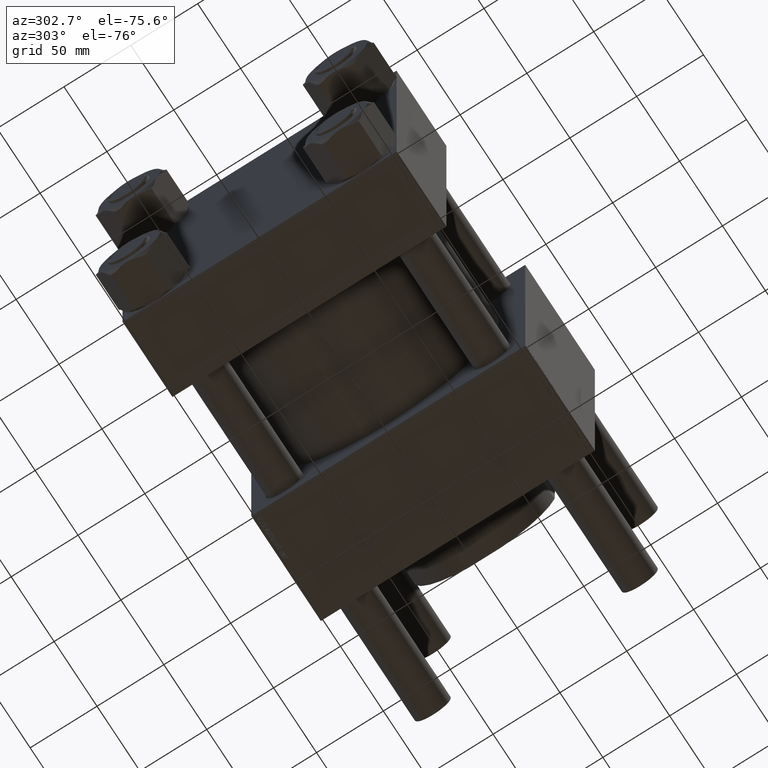
[diagram: clean part render]
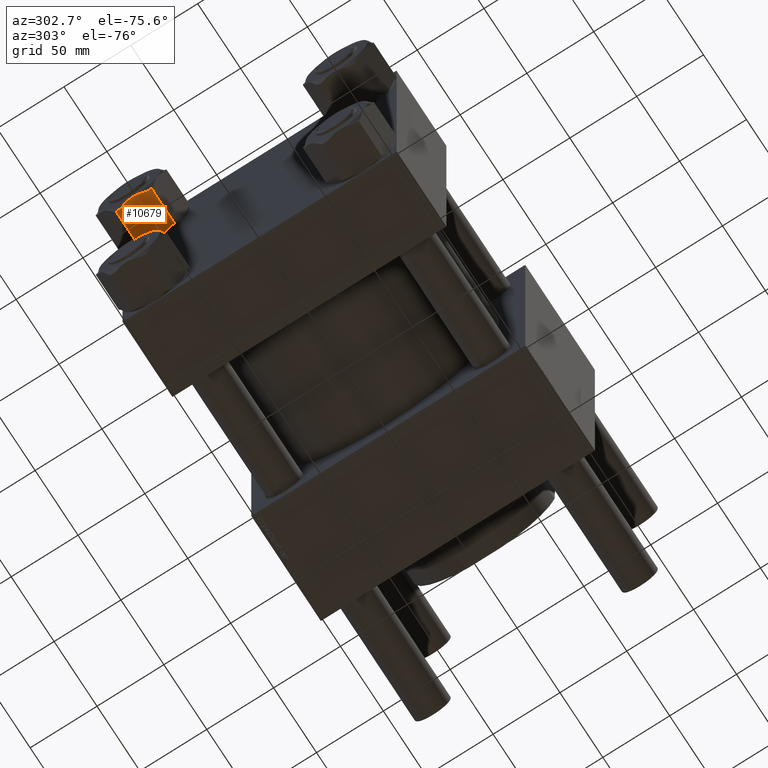
[diagram: same view with one face highlighted and labeled with its STEP entity id]
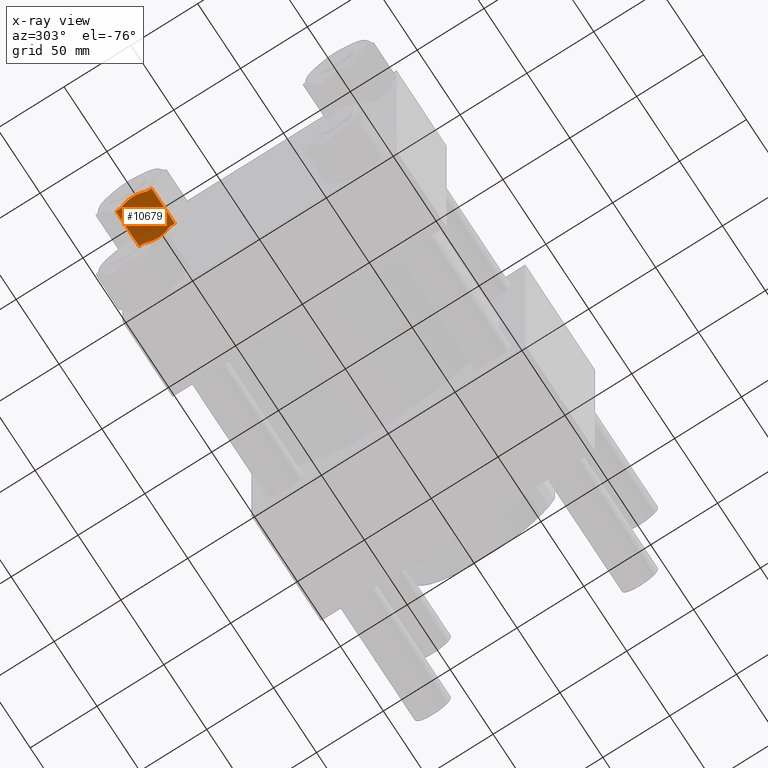
[diagram: x-ray of the same camera — body ghosted, the highlighted face saturated]
A machine part, auxiliary view. The second image highlights one B-rep face of the part: STEP entity #10679.
The next image is the same camera in x-ray: the body ghosted, the highlighted face saturated — about 12% of this face is hidden behind the body in this view.
In plain terms, the highlighted planar face has unit normal (0, 0.0859, 0.9963).
Its self-contained STEP definition (entity closure, byte-faithful):
#48 = EDGE_CURVE ( 'NONE', #52594, #17227, #28685, .T. ) ;
#327 = CARTESIAN_POINT ( 'NONE',  ( 0.000000000000000000, 23.05359624874177271, -31.00000000000000000 ) ) ;
#1963 = FACE_OUTER_BOUND ( 'NONE', #46764, .T. ) ;
#2546 = DIRECTION ( 'NONE',  ( -1.000000000000000000, 0.000000000000000000, 0.000000000000000000 ) ) ;
#2563 = CARTESIAN_POINT ( 'NONE',  ( 9.808893158505055609, 23.05359624874177271, -2.000000000000000000 ) ) ;
#2827 = DIRECTION ( 'NONE',  ( 0.000000000000000000, -0.000000000000000000, -1.000000000000000000 ) ) ;
#3520 = CARTESIAN_POINT ( 'NONE',  ( 6.641506094493674794, 23.05359624874176916, -30.11551404775775254 ) ) ;
#3764 = CARTESIAN_POINT ( 'NONE',  ( 8.222377524857016340, 23.05359624874177271, -1.410427084452076096 ) ) ;
#3979 = CARTESIAN_POINT ( 'NONE',  ( 9.808893158505068044, 23.05359624874177271, -28.99999999999999645 ) ) ;
#4345 = CARTESIAN_POINT ( 'NONE',  ( 9.808893158505055609, 23.05359624874177271, -2.000000000000000000 ) ) ;
#4618 = CARTESIAN_POINT ( 'NONE',  ( 0.000000000000000000, 23.05359624874177271, 0.000000000000000000 ) ) ;
#4896 = CARTESIAN_POINT ( 'NONE',  ( 3.350210548520252907, 23.05359624874177626, -0.1873351914320967315 ) ) ;
#6132 = LINE ( 'NONE', #12443, #45619 ) ;
#6515 = CARTESIAN_POINT ( 'NONE',  ( -0.8470567002417573876, 23.05359624874177271, -0.01168982920650373826 ) ) ;
#6753 = VERTEX_POINT ( 'NONE', #2563 ) ;
#6970 = ORIENTED_EDGE ( 'NONE', *, *, #29173, .F. ) ;
#7279 = EDGE_CURVE ( 'NONE', #20214, #17227, #35715, .T. ) ;
#7380 = CARTESIAN_POINT ( 'NONE',  ( -9.808893158505055609, 23.05359624874177271, -2.000000000000000000 ) ) ;
#7844 = VERTEX_POINT ( 'NONE', #28090 ) ;
#7972 = LINE ( 'NONE', #21301, #51816 ) ;
#9628 = B_SPLINE_CURVE_WITH_KNOTS ( 'NONE', 3,
 ( #56115, #50884, #6515, #37564, #47126, #46278, #25081, #46558, #29438, #7380 ),
 .UNSPECIFIED., .F., .F.,
 ( 4, 2, 2, 2, 4 ),
 ( 0.04709422404877768031, 0.04834823400549315836, 0.04960224396220863641, 0.05211026387563959944, 0.05712630370250151163 ),
 .UNSPECIFIED. ) ;
#9908 = ORIENTED_EDGE ( 'NONE', *, *, #48, .F. ) ;
#10679 = ADVANCED_FACE ( 'NONE', ( #1963 ), #42031, .F. ) ;
#11471 = EDGE_CURVE ( 'NONE', #7844, #17486, #27303, .T. ) ;
#12443 = CARTESIAN_POINT ( 'NONE',  ( -13.30999999999999872, 23.05359624874177271, -2.000000000000001776 ) ) ;
#12543 = CARTESIAN_POINT ( 'NONE',  ( 4.192182187841027918, 23.05359624874176916, -30.63552287451818046 ) ) ;
#13017 = CARTESIAN_POINT ( 'NONE',  ( -1.690332161126405497, 23.05359624874176561, -30.99999999999998934 ) ) ;
#15524 = CARTESIAN_POINT ( 'NONE',  ( -13.30999999999999872, 23.05359624874177271, -28.99999999999999645 ) ) ;
#16784 = CARTESIAN_POINT ( 'NONE',  ( -9.808893158505055609, 23.05359624874177271, -2.000000000000000000 ) ) ;
#16787 = CARTESIAN_POINT ( 'NONE',  ( 0.000000000000000000, 23.05359624874177271, -31.00000000000000000 ) ) ;
#16961 = DIRECTION ( 'NONE',  ( -0.000000000000000000, -0.000000000000000000, 1.000000000000000000 ) ) ;
#17227 = VERTEX_POINT ( 'NONE', #29747 ) ;
#17463 = CARTESIAN_POINT ( 'NONE',  ( 0.4218342054646818662, 23.05359624874177271, -30.99999999999999645 ) ) ;
#17486 = VERTEX_POINT ( 'NONE', #327 ) ;
#17931 = CARTESIAN_POINT ( 'NONE',  ( -5.801497649255016320, 23.05359624874177271, -30.29464328683341989 ) ) ;
#17936 = DIRECTION ( 'NONE',  ( 1.000000000000000000, 0.000000000000000000, 0.000000000000000000 ) ) ;
#19029 = ORIENTED_EDGE ( 'NONE', *, *, #57231, .F. ) ;
#19037 = CARTESIAN_POINT ( 'NONE',  ( 13.31000000000000227, 23.05359624874177271, -28.99999999999999645 ) ) ;
#19583 = LINE ( 'NONE', #15524, #52327 ) ;
#19681 = CARTESIAN_POINT ( 'NONE',  ( -13.30999999999999872, 23.05359624874177271, -31.00000000000000000 ) ) ;
#19968 = DIRECTION ( 'NONE',  ( 0.000000000000000000, -1.000000000000000000, 0.000000000000000000 ) ) ;
#20214 = VERTEX_POINT ( 'NONE', #47530 ) ;
#20863 = ORIENTED_EDGE ( 'NONE', *, *, #37218, .F. ) ;
#21301 = CARTESIAN_POINT ( 'NONE',  ( 13.31000000000000405, 23.05359624874177271, -31.00000000000000000 ) ) ;
#21449 = B_SPLINE_CURVE_WITH_KNOTS ( 'NONE', 3,
 ( #21813, #17463, #51671, #26178, #43316, #38941, #12543, #3520, #47927, #56910 ),
 .UNSPECIFIED., .F., .F.,
 ( 4, 2, 2, 2, 4 ),
 ( 0.04709422404877766644, 0.04834823400549314448, 0.04960224396220862947, 0.05211026387563958556, 0.05712630370250151163 ),
 .UNSPECIFIED. ) ;
#21813 = CARTESIAN_POINT ( 'NONE',  ( 0.000000000000000000, 23.05359624874177271, -31.00000000000000000 ) ) ;
#22186 = VECTOR ( 'NONE', #17936, 1000.000000000000000 ) ;
#23900 = CARTESIAN_POINT ( 'NONE',  ( 0.000000000000000000, 23.05359624874177271, 0.000000000000000000 ) ) ;
#25081 = CARTESIAN_POINT ( 'NONE',  ( -4.192182187841015484, 23.05359624874176916, -0.3644771254818151562 ) ) ;
#25782 = DIRECTION ( 'NONE',  ( -1.000000000000000000, 0.000000000000000000, 0.000000000000000000 ) ) ;
#25784 = LINE ( 'NONE', #57382, #22186 ) ;
#26165 = DIRECTION ( 'NONE',  ( -0.000000000000000000, -0.000000000000000000, 1.000000000000000000 ) ) ;
#26178 = CARTESIAN_POINT ( 'NONE',  ( 1.693046291327858999, 23.05359624874176916, -30.94177411052105597 ) ) ;
#26604 = VERTEX_POINT ( 'NONE', #19037 ) ;
#26710 = CARTESIAN_POINT ( 'NONE',  ( 5.801497649255006550, 23.05359624874177271, -0.7053567131665720025 ) ) ;
#27303 = B_SPLINE_CURVE_WITH_KNOTS ( 'NONE', 3,
 ( #47821, #52434, #56514, #52713, #17931, #53292, #13017, #16787 ),
 .UNSPECIFIED., .F., .F.,
 ( 4, 2, 2, 4 ),
 ( 0.03704433557245612185, 0.03955680769153650800, 0.04206927981061689414, 0.04709422404877766644 ),
 .UNSPECIFIED. ) ;
#28090 = CARTESIAN_POINT ( 'NONE',  ( -9.808893158505068044, 23.05359624874177271, -28.99999999999999645 ) ) ;
#28685 = LINE ( 'NONE', #46948, #41714 ) ;
#29173 = EDGE_CURVE ( 'NONE', #6753, #54300, #40389, .T. ) ;
#29438 = CARTESIAN_POINT ( 'NONE',  ( -8.238500401260287376, 23.05359624874176561, -1.385165521956633006 ) ) ;
#29747 = CARTESIAN_POINT ( 'NONE',  ( -13.30999999999999872, 23.05359624874177271, -2.000000000000001776 ) ) ;
#33344 = CARTESIAN_POINT ( 'NONE',  ( 13.31000000000000227, 23.05359624874177271, -2.000000000000001776 ) ) ;
#33502 = VERTEX_POINT ( 'NONE', #3979 ) ;
#34802 = ORIENTED_EDGE ( 'NONE', *, *, #7279, .T. ) ;
#35351 = VECTOR ( 'NONE', #26165, 1000.000000000000000 ) ;
#35715 = LINE ( 'NONE', #53661, #35351 ) ;
#36228 = EDGE_CURVE ( 'NONE', #33502, #26604, #25784, .T. ) ;
#37218 = EDGE_CURVE ( 'NONE', #26604, #43795, #7972, .T. ) ;
#37564 = CARTESIAN_POINT ( 'NONE',  ( -1.693046291327859665, 23.05359624874176561, -0.05822588947894232619 ) ) ;
#38941 = CARTESIAN_POINT ( 'NONE',  ( 3.366747807636252698, 23.05359624874176916, -30.77026726310295501 ) ) ;
#39160 = AXIS2_PLACEMENT_3D ( 'NONE', #19681, #19968, #2827 ) ;
#40389 = B_SPLINE_CURVE_WITH_KNOTS ( 'NONE', 3,
 ( #4345, #53358, #3764, #43851, #26710, #4896, #56875, #4618 ),
 .UNSPECIFIED., .F., .F.,
 ( 4, 2, 2, 4 ),
 ( 0.03704433557245614961, 0.03955680769153653575, 0.04206927981061691496, 0.04709422404877768031 ),
 .UNSPECIFIED. ) ;
#41714 = VECTOR ( 'NONE', #2546, 1000.000000000000000 ) ;
#42031 = PLANE ( 'NONE',  #39160 ) ;
#42217 = DIRECTION ( 'NONE',  ( 1.000000000000000000, 0.000000000000000000, 0.000000000000000000 ) ) ;
#42496 = EDGE_CURVE ( 'NONE', #43795, #6753, #6132, .T. ) ;
#42628 = ORIENTED_EDGE ( 'NONE', *, *, #36228, .F. ) ;
#43165 = ORIENTED_EDGE ( 'NONE', *, *, #56970, .F. ) ;
#43316 = CARTESIAN_POINT ( 'NONE',  ( 2.113373616412101530, 23.05359624874177626, -30.90705919660666723 ) ) ;
#43795 = VERTEX_POINT ( 'NONE', #33344 ) ;
#43851 = CARTESIAN_POINT ( 'NONE',  ( 6.612214801278774701, 23.05359624874176916, -0.9172679422720635412 ) ) ;
#44378 = ORIENTED_EDGE ( 'NONE', *, *, #11471, .F. ) ;
#44402 = ORIENTED_EDGE ( 'NONE', *, *, #42496, .F. ) ;
#45619 = VECTOR ( 'NONE', #25782, 1000.000000000000000 ) ;
#46278 = CARTESIAN_POINT ( 'NONE',  ( -3.366747807636247813, 23.05359624874176561, -0.2297327368970412120 ) ) ;
#46558 = CARTESIAN_POINT ( 'NONE',  ( -6.641506094493657919, 23.05359624874177271, -0.8844859522422369169 ) ) ;
#46764 = EDGE_LOOP ( 'NONE', ( #43165, #34802, #9908, #56623, #6970, #44402, #20863, #42628, #19029, #44378 ) ) ;
#46948 = CARTESIAN_POINT ( 'NONE',  ( -13.30999999999999872, 23.05359624874177271, -2.000000000000001776 ) ) ;
#47126 = CARTESIAN_POINT ( 'NONE',  ( -2.113373616412097533, 23.05359624874177626, -0.09294080339333840590 ) ) ;
#47530 = CARTESIAN_POINT ( 'NONE',  ( -13.30999999999999872, 23.05359624874177271, -28.99999999999999645 ) ) ;
#47821 = CARTESIAN_POINT ( 'NONE',  ( -9.808893158505068044, 23.05359624874177271, -28.99999999999999645 ) ) ;
#47927 = CARTESIAN_POINT ( 'NONE',  ( 8.238500401260303363, 23.05359624874176916, -29.61483447804336677 ) ) ;
#50884 = CARTESIAN_POINT ( 'NONE',  ( -0.4218342054646835870, 23.05359624874177271, 4.573977915173220598E-17 ) ) ;
#51671 = CARTESIAN_POINT ( 'NONE',  ( 0.8470567002417541680, 23.05359624874176916, -30.98831017079348982 ) ) ;
#51816 = VECTOR ( 'NONE', #16961, 1000.000000000000000 ) ;
#52327 = VECTOR ( 'NONE', #42217, 1000.000000000000000 ) ;
#52434 = CARTESIAN_POINT ( 'NONE',  ( -9.024432966208907558, 23.05359624874177982, -29.30712901002065962 ) ) ;
#52594 = VERTEX_POINT ( 'NONE', #16784 ) ;
#52713 = CARTESIAN_POINT ( 'NONE',  ( -6.612214801278789800, 23.05359624874177626, -30.08273205772793446 ) ) ;
#53292 = CARTESIAN_POINT ( 'NONE',  ( -3.350210548520259124, 23.05359624874177271, -30.81266480856789158 ) ) ;
#53358 = CARTESIAN_POINT ( 'NONE',  ( 9.024432966208889795, 23.05359624874177626, -1.692870989979337271 ) ) ;
#53661 = CARTESIAN_POINT ( 'NONE',  ( -13.30999999999999872, 23.05359624874177271, -31.00000000000000000 ) ) ;
#54300 = VERTEX_POINT ( 'NONE', #23900 ) ;
#56115 = CARTESIAN_POINT ( 'NONE',  ( 0.000000000000000000, 23.05359624874177271, 0.000000000000000000 ) ) ;
#56514 = CARTESIAN_POINT ( 'NONE',  ( -8.222377524857034103, 23.05359624874176916, -29.58957291554791880 ) ) ;
#56623 = ORIENTED_EDGE ( 'NONE', *, *, #56952, .F. ) ;
#56875 = CARTESIAN_POINT ( 'NONE',  ( 1.690332161126403276, 23.05359624874177626, -2.439454888092385470E-16 ) ) ;
#56910 = CARTESIAN_POINT ( 'NONE',  ( 9.808893158505068044, 23.05359624874177271, -28.99999999999999645 ) ) ;
#56952 = EDGE_CURVE ( 'NONE', #54300, #52594, #9628, .T. ) ;
#56970 = EDGE_CURVE ( 'NONE', #20214, #7844, #19583, .T. ) ;
#57231 = EDGE_CURVE ( 'NONE', #17486, #33502, #21449, .T. ) ;
#57382 = CARTESIAN_POINT ( 'NONE',  ( -13.30999999999999872, 23.05359624874177271, -28.99999999999999645 ) ) ;